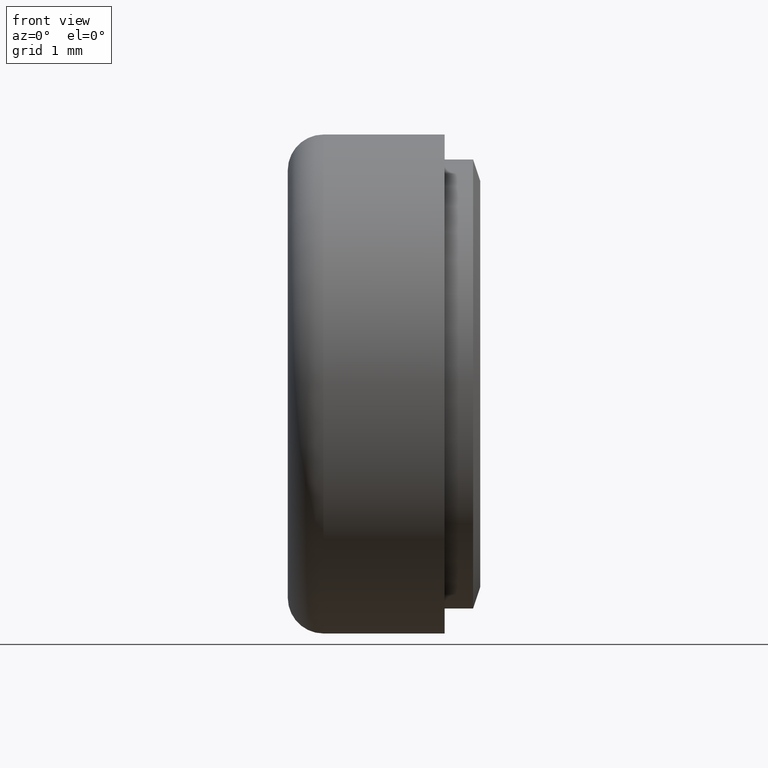
[diagram: clean part render]
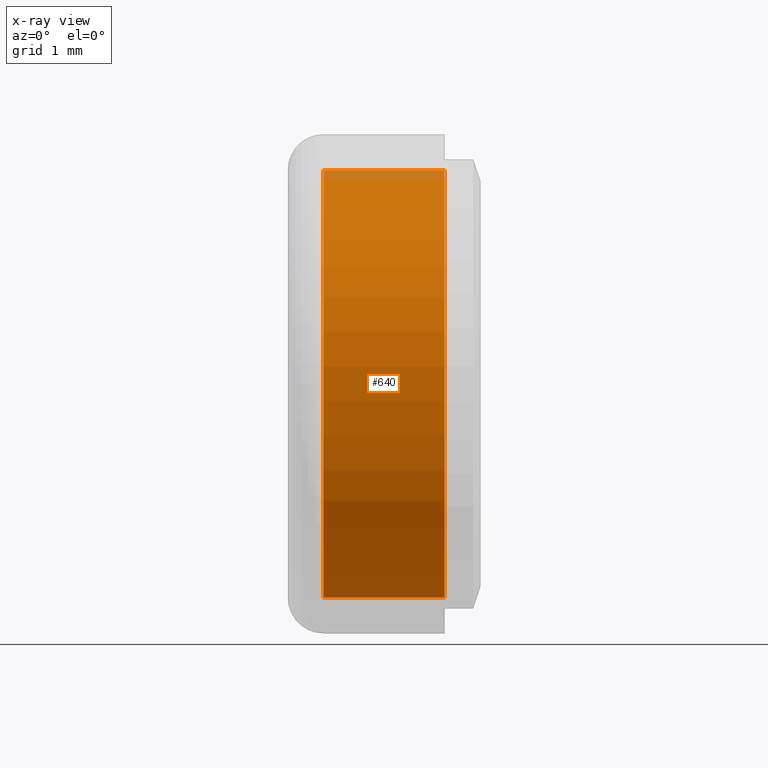
[diagram: x-ray — body ghosted, one internal face saturated and labeled with its STEP entity id]
A machine part, front view, then the same camera in x-ray: the body is ghosted and one INTERNAL B-rep face — a face not visible from any outside direction — is saturated and labeled: STEP entity #640.
In plain terms, the highlighted cylindrical surface (partial cylindrical patch) has radius 3 mm, axis along (-1, -0, -0).
Its self-contained STEP definition (entity closure, byte-faithful):
#37 = EDGE_LOOP ( 'NONE', ( #238, #411, #321, #681 ) ) ;
#59 = CARTESIAN_POINT ( 'NONE',  ( -0.1100000000000000700, 0.0000000000000000000, 2.999999999999999600 ) ) ;
#78 = DIRECTION ( 'NONE',  ( -1.000000000000000000, -0.0000000000000000000, -0.0000000000000000000 ) ) ;
#116 = CARTESIAN_POINT ( 'NONE',  ( 0.0000000000000000000, 0.0000000000000000000, 0.0000000000000000000 ) ) ;
#154 = EDGE_CURVE ( 'NONE', #649, #272, #414, .T. ) ;
#165 = CARTESIAN_POINT ( 'NONE',  ( 0.0000000000000000000, 0.0000000000000000000, 2.999999999999999600 ) ) ;
#194 = EDGE_CURVE ( 'NONE', #732, #272, #396, .T. ) ;
#235 = CARTESIAN_POINT ( 'NONE',  ( 1.700000000000000000, 0.0000000000000000000, 0.0000000000000000000 ) ) ;
#238 = ORIENTED_EDGE ( 'NONE', *, *, #576, .F. ) ;
#242 = CARTESIAN_POINT ( 'NONE',  ( 1.700000000000000000, 3.673940397442059400E-016, -2.999999999999999600 ) ) ;
#256 = LINE ( 'NONE', #575, #395 ) ;
#272 = VERTEX_POINT ( 'NONE', #165 ) ;
#276 = DIRECTION ( 'NONE',  ( -1.000000000000000000, -0.0000000000000000000, -0.0000000000000000000 ) ) ;
#321 = ORIENTED_EDGE ( 'NONE', *, *, #194, .T. ) ;
#344 = CIRCLE ( 'NONE', #437, 2.999999999999999600 ) ;
#353 = FACE_OUTER_BOUND ( 'NONE', #37, .T. ) ;
#359 = CARTESIAN_POINT ( 'NONE',  ( -0.1100000000000000700, 0.0000000000000000000, 0.0000000000000000000 ) ) ;
#362 = CARTESIAN_POINT ( 'NONE',  ( 1.700000000000000000, 0.0000000000000000000, 2.999999999999999600 ) ) ;
#395 = VECTOR ( 'NONE', #706, 1000.000000000000000 ) ;
#396 = LINE ( 'NONE', #59, #682 ) ;
#411 = ORIENTED_EDGE ( 'NONE', *, *, #487, .T. ) ;
#414 = CIRCLE ( 'NONE', #573, 2.999999999999999600 ) ;
#419 = DIRECTION ( 'NONE',  ( -1.000000000000000000, -0.0000000000000000000, -0.0000000000000000000 ) ) ;
#427 = AXIS2_PLACEMENT_3D ( 'NONE', #359, #419, #638 ) ;
#437 = AXIS2_PLACEMENT_3D ( 'NONE', #235, #627, #698 ) ;
#480 = CYLINDRICAL_SURFACE ( 'NONE', #427, 2.999999999999999600 ) ;
#487 = EDGE_CURVE ( 'NONE', #637, #732, #344, .T. ) ;
#573 = AXIS2_PLACEMENT_3D ( 'NONE', #116, #276, #712 ) ;
#575 = CARTESIAN_POINT ( 'NONE',  ( -0.1100000000000000700, 3.673940397442059400E-016, -2.999999999999999600 ) ) ;
#576 = EDGE_CURVE ( 'NONE', #637, #649, #256, .T. ) ;
#627 = DIRECTION ( 'NONE',  ( -1.000000000000000000, -0.0000000000000000000, -0.0000000000000000000 ) ) ;
#637 = VERTEX_POINT ( 'NONE', #242 ) ;
#638 = DIRECTION ( 'NONE',  ( 0.0000000000000000000, 0.0000000000000000000, 1.000000000000000000 ) ) ;
#640 = ADVANCED_FACE ( 'NONE', ( #353 ), #480, .T. ) ;
#649 = VERTEX_POINT ( 'NONE', #707 ) ;
#681 = ORIENTED_EDGE ( 'NONE', *, *, #154, .F. ) ;
#682 = VECTOR ( 'NONE', #78, 1000.000000000000000 ) ;
#698 = DIRECTION ( 'NONE',  ( 0.0000000000000000000, 0.0000000000000000000, 1.000000000000000000 ) ) ;
#706 = DIRECTION ( 'NONE',  ( -1.000000000000000000, -0.0000000000000000000, -0.0000000000000000000 ) ) ;
#707 = CARTESIAN_POINT ( 'NONE',  ( 0.0000000000000000000, 3.673940397442059400E-016, -2.999999999999999600 ) ) ;
#712 = DIRECTION ( 'NONE',  ( 0.0000000000000000000, 0.0000000000000000000, 1.000000000000000000 ) ) ;
#732 = VERTEX_POINT ( 'NONE', #362 ) ;